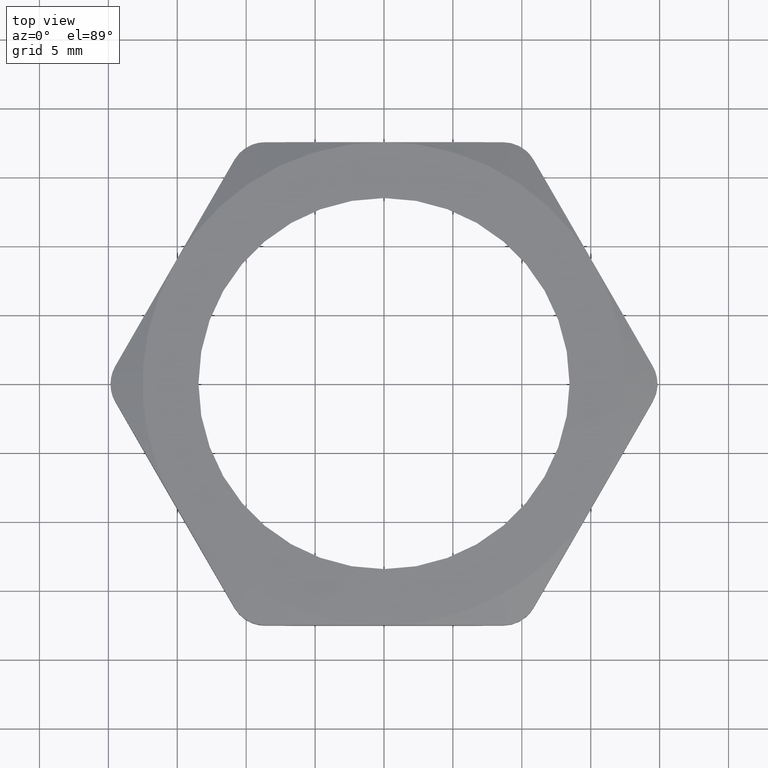
[diagram: clean part render]
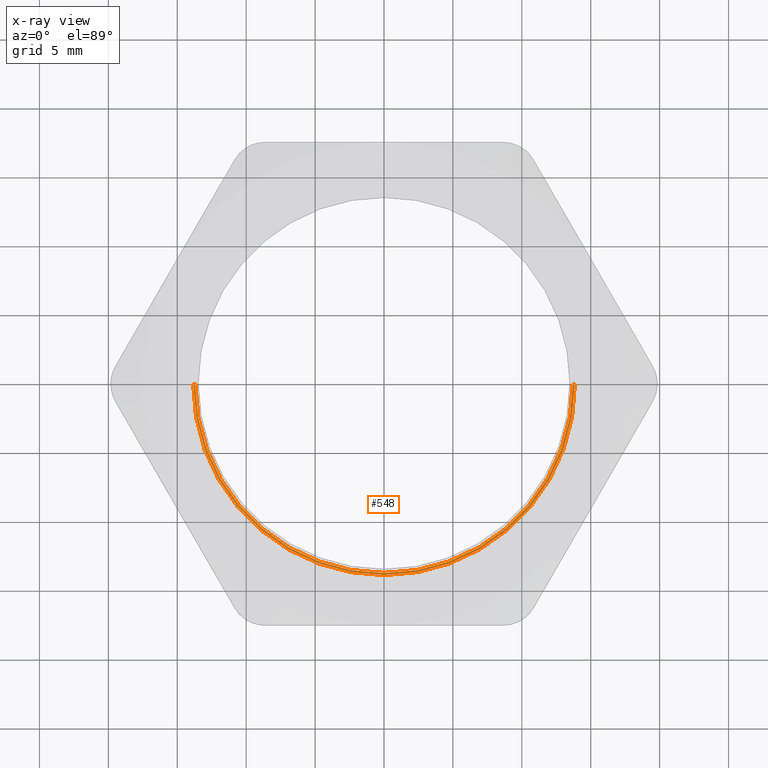
[diagram: x-ray — body ghosted, one internal face saturated and labeled with its STEP entity id]
A machine part, top view, then the same camera in x-ray: the body is ghosted and one INTERNAL B-rep face — a face not visible from any outside direction — is saturated and labeled: STEP entity #548.
In plain terms, the highlighted conical surface has half-angle 60 deg.
Its self-contained STEP definition (entity closure, byte-faithful):
#527 = EDGE_CURVE ( 'NONE', #561, #528, #1743, .T. ) ;
#528 = VERTEX_POINT ( 'NONE', #1802 ) ;
#529 = VERTEX_POINT ( 'NONE', #1801 ) ;
#541 = ORIENTED_EDGE ( 'NONE', *, *, #542, .F. ) ;
#542 = EDGE_CURVE ( 'NONE', #529, #528, #1778, .T. ) ;
#543 = ORIENTED_EDGE ( 'NONE', *, *, #544, .F. ) ;
#544 = EDGE_CURVE ( 'NONE', #560, #529, #1774, .T. ) ;
#548 = ADVANCED_FACE ( 'NONE', ( #1826 ), #1825, .F. ) ;
#549 = EDGE_LOOP ( 'NONE', ( #550, #605, #541, #543 ) ) ;
#550 = ORIENTED_EDGE ( 'NONE', *, *, #559, .T. ) ;
#559 = EDGE_CURVE ( 'NONE', #560, #561, #1857, .T. ) ;
#560 = VERTEX_POINT ( 'NONE', #1853 ) ;
#561 = VERTEX_POINT ( 'NONE', #1852 ) ;
#605 = ORIENTED_EDGE ( 'NONE', *, *, #527, .T. ) ;
#1270 = DIRECTION ( 'NONE',  ( 0.8660254037844351500, 0.0000000000000000000, 0.5000000000000058800 ) ) ;
#1271 = VECTOR ( 'NONE', #1270, 39.37007874015748100 ) ;
#1742 = CARTESIAN_POINT ( 'NONE',  ( -0.5300000000000000300, 6.490628035480972400E-017, -0.005320508075688657400 ) ) ;
#1743 = LINE ( 'NONE', #1742, #1804 ) ;
#1773 = CARTESIAN_POINT ( 'NONE',  ( 0.5300000000000000300, 0.0000000000000000000, -0.005320508075688657400 ) ) ;
#1774 = LINE ( 'NONE', #1773, #1271 ) ;
#1775 = DIRECTION ( 'NONE',  ( -1.000000000000000000, 0.0000000000000000000, 0.0000000000000000000 ) ) ;
#1776 = DIRECTION ( 'NONE',  ( 0.0000000000000000000, 0.0000000000000000000, -1.000000000000000000 ) ) ;
#1777 = AXIS2_PLACEMENT_3D ( 'NONE', #1784, #1776, #1775 ) ;
#1778 = CIRCLE ( 'NONE', #1777, 0.5450000000000000400 ) ;
#1784 = CARTESIAN_POINT ( 'NONE',  ( 0.0000000000000000000, 0.0000000000000000000, 0.003339745962155851800 ) ) ;
#1801 = CARTESIAN_POINT ( 'NONE',  ( 0.5450000000000000400, 6.674325055353075000E-017, 0.003339745962155851800 ) ) ;
#1802 = CARTESIAN_POINT ( 'NONE',  ( -0.5450000000000000400, 0.0000000000000000000, 0.003339745962155851800 ) ) ;
#1803 = DIRECTION ( 'NONE',  ( -0.8660254037844351500, 1.060575238724902700E-016, 0.5000000000000058800 ) ) ;
#1804 = VECTOR ( 'NONE', #1803, 39.37007874015748100 ) ;
#1805 = CARTESIAN_POINT ( 'NONE',  ( 0.0000000000000000000, 0.0000000000000000000, 0.0000000000000000000 ) ) ;
#1821 = DIRECTION ( 'NONE',  ( 1.000000000000000000, 0.0000000000000000000, 0.0000000000000000000 ) ) ;
#1822 = DIRECTION ( 'NONE',  ( 0.0000000000000000000, 0.0000000000000000000, 1.000000000000000000 ) ) ;
#1823 = AXIS2_PLACEMENT_3D ( 'NONE', #1830, #1822, #1821 ) ;
#1825 = CONICAL_SURFACE ( 'NONE', #1823, 0.5300000000000000300, 1.047197551196591000 ) ;
#1826 = FACE_OUTER_BOUND ( 'NONE', #549, .T. ) ;
#1830 = CARTESIAN_POINT ( 'NONE',  ( 0.0000000000000000000, 0.0000000000000000000, -0.005320508075688657400 ) ) ;
#1852 = CARTESIAN_POINT ( 'NONE',  ( -0.5392153903091730900, 6.638904536642135900E-017, 0.0000000000000000000 ) ) ;
#1853 = CARTESIAN_POINT ( 'NONE',  ( 0.5392153903091730900, 0.0000000000000000000, 0.0000000000000000000 ) ) ;
#1854 = DIRECTION ( 'NONE',  ( -1.000000000000000000, 0.0000000000000000000, 0.0000000000000000000 ) ) ;
#1855 = DIRECTION ( 'NONE',  ( 0.0000000000000000000, 0.0000000000000000000, -1.000000000000000000 ) ) ;
#1856 = AXIS2_PLACEMENT_3D ( 'NONE', #1805, #1855, #1854 ) ;
#1857 = CIRCLE ( 'NONE', #1856, 0.5392153903091730900 ) ;